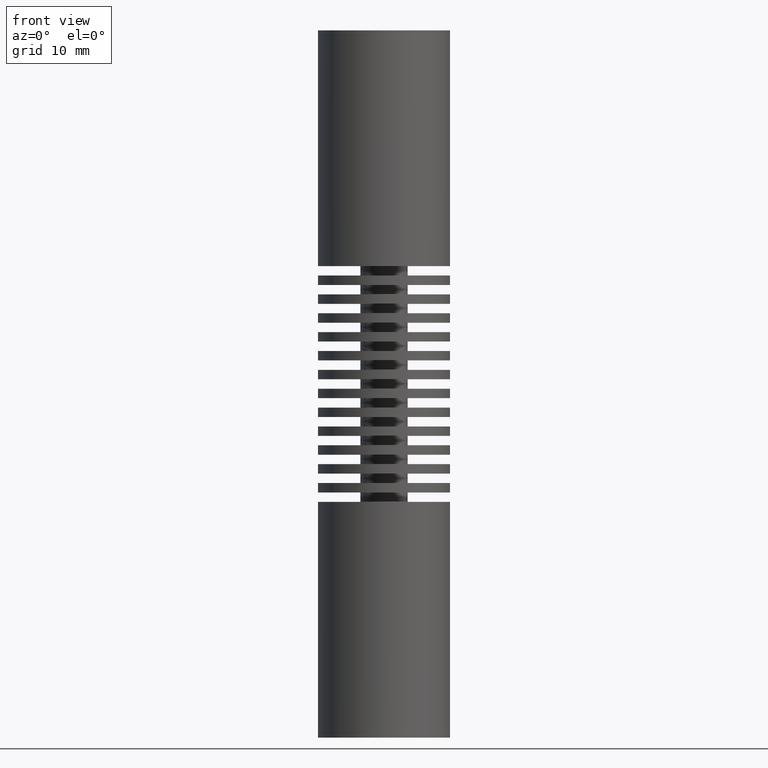
[diagram: clean part render]
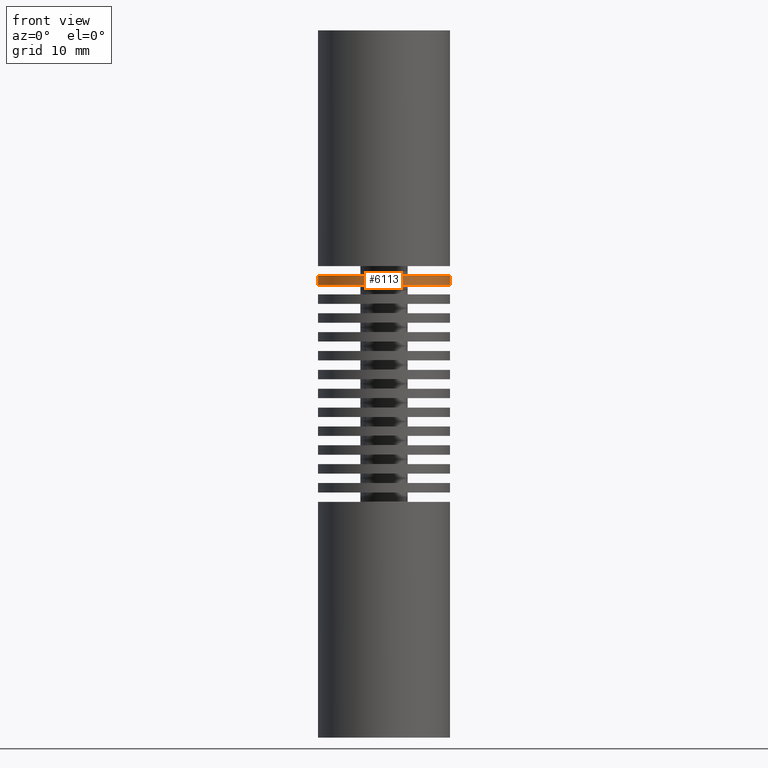
[diagram: same view with one face highlighted and labeled with its STEP entity id]
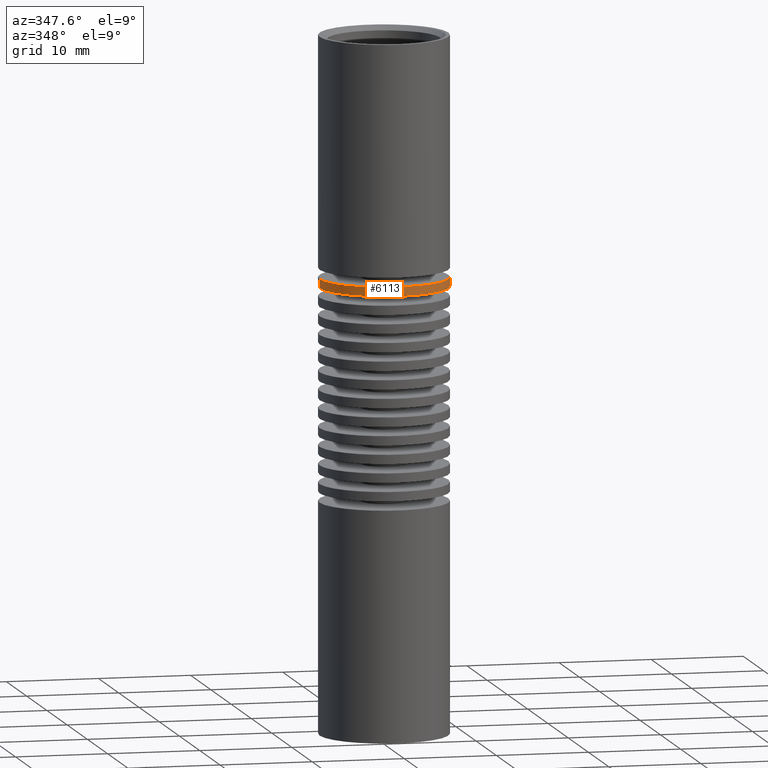
[diagram: same view with one face highlighted and labeled with its STEP entity id]
A machine part, front view. The second image highlights one B-rep face of the part: STEP entity #6113.
A second angle (auxiliary view) of the same face is appended — the face is thin or edge-on in the first view.
In plain terms, the highlighted cylindrical surface (partial cylindrical patch) has radius 7 mm, axis along (0, -0, 1).
Its self-contained STEP definition (entity closure, byte-faithful):
#432 = VERTEX_POINT ( 'NONE', #6290 ) ;
#466 = LINE ( 'NONE', #8632, #8755 ) ;
#565 = VECTOR ( 'NONE', #13615, 1000.000000000000000 ) ;
#1316 = CARTESIAN_POINT ( 'NONE',  ( -7.000000000000002665, 8.572527594031475162E-16, 10.49999999999999645 ) ) ;
#1860 = DIRECTION ( 'NONE',  ( -1.000000000000000000, 0.000000000000000000, 2.478176394252580648E-16 ) ) ;
#1922 = DIRECTION ( 'NONE',  ( 2.478176394252581634E-16, -0.000000000000000000, 1.000000000000000000 ) ) ;
#2002 = DIRECTION ( 'NONE',  ( -2.478176394252581141E-16, 0.000000000000000000, -1.000000000000000000 ) ) ;
#2405 = EDGE_CURVE ( 'NONE', #3327, #13600, #8753, .T. ) ;
#2879 = EDGE_CURVE ( 'NONE', #432, #13600, #14319, .T. ) ;
#3032 = DIRECTION ( 'NONE',  ( 2.478176394252581634E-16, -0.000000000000000000, 1.000000000000000000 ) ) ;
#3327 = VERTEX_POINT ( 'NONE', #13722 ) ;
#3337 = AXIS2_PLACEMENT_3D ( 'NONE', #5095, #9586, #1860 ) ;
#4026 = ORIENTED_EDGE ( 'NONE', *, *, #8434, .T. ) ;
#4390 = ORIENTED_EDGE ( 'NONE', *, *, #4595, .F. ) ;
#4556 = ORIENTED_EDGE ( 'NONE', *, *, #2879, .F. ) ;
#4595 = EDGE_CURVE ( 'NONE', #8533, #432, #12527, .T. ) ;
#5095 = CARTESIAN_POINT ( 'NONE',  ( 0.000000000000000000, 0.000000000000000000, 11.49999999999999645 ) ) ;
#5265 = DIRECTION ( 'NONE',  ( 1.000000000000000000, 0.000000000000000000, -2.478176394252580648E-16 ) ) ;
#6113 = ADVANCED_FACE ( 'NONE', ( #9867 ), #6894, .T. ) ;
#6202 = ORIENTED_EDGE ( 'NONE', *, *, #2405, .T. ) ;
#6290 = CARTESIAN_POINT ( 'NONE',  ( -7.000000000000002665, 8.572527594031475162E-16, 10.49999999999999645 ) ) ;
#6894 = CYLINDRICAL_SURFACE ( 'NONE', #14526, 7.000000000000002665 ) ;
#8434 = EDGE_CURVE ( 'NONE', #8533, #3327, #466, .T. ) ;
#8533 = VERTEX_POINT ( 'NONE', #11094 ) ;
#8632 = CARTESIAN_POINT ( 'NONE',  ( 7.000000000000002665, 0.000000000000000000, 10.49999999999999289 ) ) ;
#8753 = CIRCLE ( 'NONE', #3337, 7.000000000000002665 ) ;
#8755 = VECTOR ( 'NONE', #3032, 1000.000000000000000 ) ;
#8928 = AXIS2_PLACEMENT_3D ( 'NONE', #10170, #2002, #12059 ) ;
#9586 = DIRECTION ( 'NONE',  ( -2.478176394252581141E-16, 0.000000000000000000, -1.000000000000000000 ) ) ;
#9867 = FACE_OUTER_BOUND ( 'NONE', #14309, .T. ) ;
#10170 = CARTESIAN_POINT ( 'NONE',  ( -2.478176394252581634E-16, 0.000000000000000000, 10.49999999999999467 ) ) ;
#10873 = CARTESIAN_POINT ( 'NONE',  ( -2.478176394252581634E-16, 0.000000000000000000, 10.49999999999999467 ) ) ;
#11094 = CARTESIAN_POINT ( 'NONE',  ( 7.000000000000002665, 0.000000000000000000, 10.49999999999999289 ) ) ;
#11595 = CARTESIAN_POINT ( 'NONE',  ( -7.000000000000002665, 8.572527594031475162E-16, 11.49999999999999822 ) ) ;
#12059 = DIRECTION ( 'NONE',  ( -1.000000000000000000, 0.000000000000000000, 2.478176394252580648E-16 ) ) ;
#12527 = CIRCLE ( 'NONE', #8928, 7.000000000000002665 ) ;
#13600 = VERTEX_POINT ( 'NONE', #11595 ) ;
#13615 = DIRECTION ( 'NONE',  ( 2.478176394252581634E-16, -0.000000000000000000, 1.000000000000000000 ) ) ;
#13722 = CARTESIAN_POINT ( 'NONE',  ( 7.000000000000002665, 0.000000000000000000, 11.49999999999999467 ) ) ;
#14309 = EDGE_LOOP ( 'NONE', ( #4556, #4390, #4026, #6202 ) ) ;
#14319 = LINE ( 'NONE', #1316, #565 ) ;
#14526 = AXIS2_PLACEMENT_3D ( 'NONE', #10873, #1922, #5265 ) ;